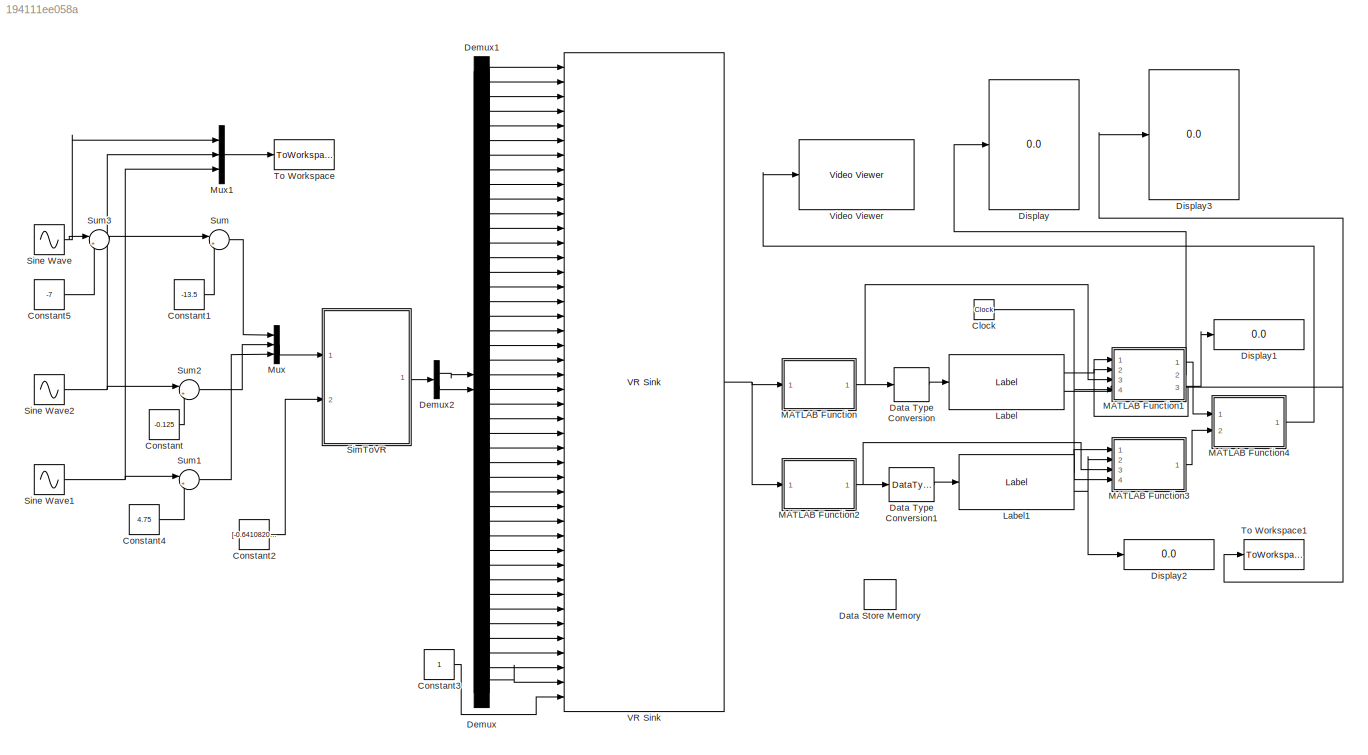
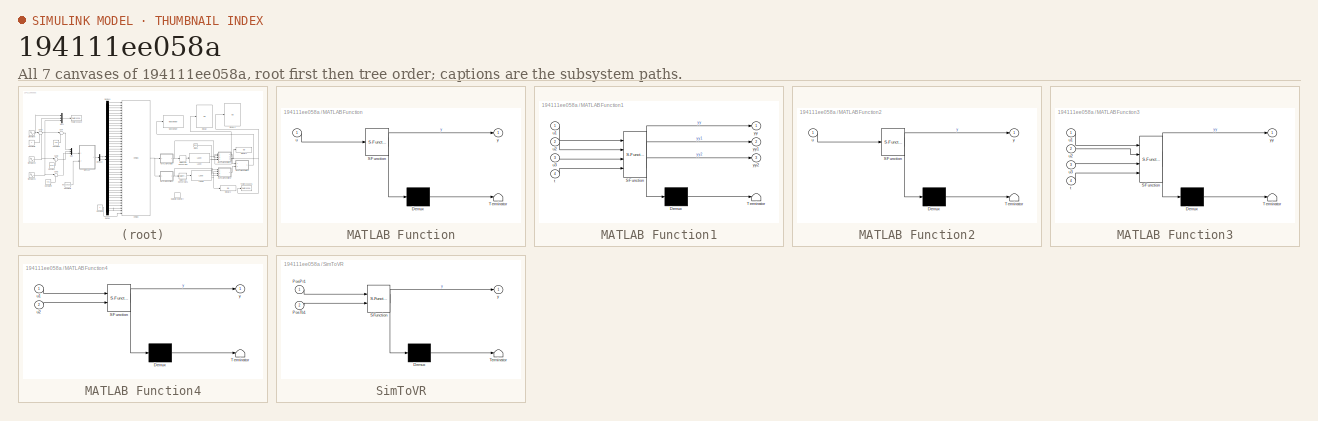
[diagram: thumbnail index - all 7 canvases of the model, root first then tree order]
MODEL slx_194111ee058a
KIND model
BLOCK [Clock] Clock
BLOCK [Constant] Constant
  Value = -0.125
BLOCK [Constant] Constant1
  Value = -13.5
BLOCK [Constant] Constant2
  Value = [-0.641082020570737	0.000198505356969816	0.319485276494183	-1.28393532402013	-0.00160281843683540	0.635386248124202	-1.93123901470987	-0.00236208899737502	0.942069136345351	-2.57908748233429	-0.00371191186814384	1.24759749734461	-3.23222347389724	-0.00458728864970563	1.54165471735559	-3.88606315497445	-0.00765856664806413	1.83412912153534	-4.54441464916205	-0.00690931267848755	2.11631662501387	-5....<+1483ch>
BLOCK [Constant] Constant3
BLOCK [Constant] Constant4
  Value = 4.75
BLOCK [Constant] Constant5
  Value = -7
BLOCK [DataStoreMemory] Data Store Memory
  DataStoreName = AA
  InitialValue = [0 0 0]
  OutDataTypeStr = double
  SignalType = real
BLOCK [DataTypeConversion] Data Type Conversion
  OutDataTypeStr = boolean
  RndMeth = Floor
  SaturateOnIntegerOverflow = off
BLOCK [DataTypeConversion] Data Type Conversion1
  OutDataTypeStr = boolean
  RndMeth = Floor
  SaturateOnIntegerOverflow = off
BLOCK [Demux] Demux
  DisplayOption = bar
  Outputs = 22
  Ports = [1, 22]
BLOCK [Demux] Demux1
  DisplayOption = bar
  Outputs = 22
  Ports = [1, 22]
BLOCK [Demux] Demux2
  DisplayOption = bar
  Outputs = [88,66]
  Ports = [1, 2]
BLOCK [Display] Display
  Decimation = 1
  Lockdown = off
  Ports = [1]
BLOCK [Display] Display1
  Decimation = 1
  Lockdown = off
  Ports = [1]
BLOCK [Display] Display2
  Decimation = 1
  Lockdown = off
  Ports = [1]
BLOCK [Display] Display3
  Decimation = 1
  Lockdown = off
  Ports = [1]
BLOCK [Reference] Label  REF=visionmorphops/Label
  Ports = [1, 2]
  SourceBlock = visionmorphops/Label
  SourceType = Label
  conn = 8
  lastLabel = maximum value of the output data type
  outType = Automatic
  output = Label matrix and number of labels
BLOCK [Reference] Label1  REF=visionmorphops/Label
  Ports = [1, 2]
  SourceBlock = visionmorphops/Label
  SourceType = Label
  conn = 8
  lastLabel = maximum value of the output data type
  outType = Automatic
  output = Label matrix and number of labels
BLOCK [SubSystem] MATLAB Function
  ErrorFcn = Stateflow.Translate.translate
  FunctionWithSeparateData = off
  MaskHideContents = off
  MinAlgLoopOccurrences = off
  Opaque = off
  PermitHierarchicalResolution = ExplicitOnly
  Ports = [1, 1]
  PropExecContextOutsideSubsystem = off
  RTWSystemCode = Auto
  RequestExecContextInheritance = off
  SFBlockType = MATLAB Function
  TreatAsAtomicUnit = on
BLOCK [Demux] MATLAB Function/ Demux 
  Outputs = 1
  Ports = [1, 1]
BLOCK [S-Function] MATLAB Function/ SFunction 
  EnableBusSupport = on
  FunctionName = sf_sfun
  PortCounts = [1 2]
  Ports = [1, 2]
  Tag = Stateflow S-Function DrogueVisualNavigation4_4Video 2
BLOCK [Terminator] MATLAB Function/ Terminator 
BLOCK [Inport] MATLAB Function/u
  IconDisplay = Port number
BLOCK [Outport] MATLAB Function/y
  IconDisplay = Port number
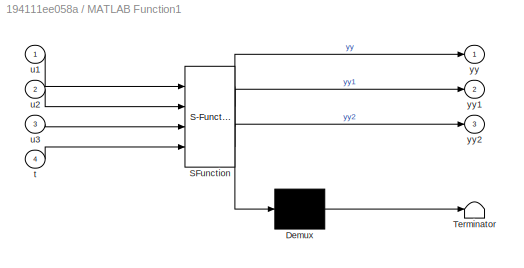
BLOCK [SubSystem] MATLAB Function1
  ErrorFcn = Stateflow.Translate.translate
  FunctionWithSeparateData = off
  MaskHideContents = off
  MinAlgLoopOccurrences = off
  Opaque = off
  PermitHierarchicalResolution = ExplicitOnly
  Ports = [4, 3]
  PropExecContextOutsideSubsystem = off
  RTWSystemCode = Auto
  RequestExecContextInheritance = off
  SFBlockType = MATLAB Function
  TreatAsAtomicUnit = on
BLOCK [Demux] MATLAB Function1/ Demux 
  Outputs = 1
  Ports = [1, 1]
BLOCK [S-Function] MATLAB Function1/ SFunction 
  EnableBusSupport = on
  FunctionName = sf_sfun
  PortCounts = [4 4]
  Ports = [4, 4]
  Tag = Stateflow S-Function DrogueVisualNavigation4_4Video 1
BLOCK [Terminator] MATLAB Function1/ Terminator 
BLOCK [Inport] MATLAB Function1/t
  IconDisplay = Port number
  Port = 4
BLOCK [Inport] MATLAB Function1/u1
  IconDisplay = Port number
BLOCK [Inport] MATLAB Function1/u2
  IconDisplay = Port number
  Port = 2
BLOCK [Inport] MATLAB Function1/u3
  IconDisplay = Port number
  Port = 3
BLOCK [Outport] MATLAB Function1/yy
  IconDisplay = Port number
BLOCK [Outport] MATLAB Function1/yy1
  IconDisplay = Port number
  Port = 2
BLOCK [Outport] MATLAB Function1/yy2
  IconDisplay = Port number
  Port = 3
BLOCK [SubSystem] MATLAB Function2
  ErrorFcn = Stateflow.Translate.translate
  FunctionWithSeparateData = off
  MaskHideContents = off
  MinAlgLoopOccurrences = off
  Opaque = off
  PermitHierarchicalResolution = ExplicitOnly
  Ports = [1, 1]
  PropExecContextOutsideSubsystem = off
  RTWSystemCode = Auto
  RequestExecContextInheritance = off
  SFBlockType = MATLAB Function
  TreatAsAtomicUnit = on
BLOCK [Demux] MATLAB Function2/ Demux 
  Outputs = 1
  Ports = [1, 1]
BLOCK [S-Function] MATLAB Function2/ SFunction 
  EnableBusSupport = on
  FunctionName = sf_sfun
  PortCounts = [1 2]
  Ports = [1, 2]
  Tag = Stateflow S-Function DrogueVisualNavigation4_4Video 4
BLOCK [Terminator] MATLAB Function2/ Terminator 
BLOCK [Inport] MATLAB Function2/u
  IconDisplay = Port number
BLOCK [Outport] MATLAB Function2/y
  IconDisplay = Port number
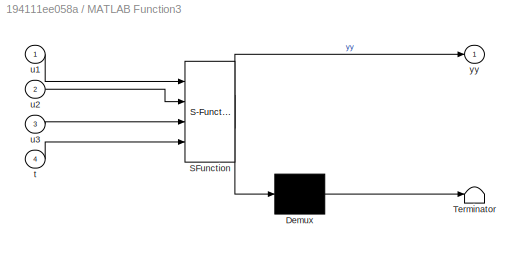
BLOCK [SubSystem] MATLAB Function3
  ErrorFcn = Stateflow.Translate.translate
  FunctionWithSeparateData = off
  MaskHideContents = off
  MinAlgLoopOccurrences = off
  Opaque = off
  PermitHierarchicalResolution = ExplicitOnly
  Ports = [4, 1]
  PropExecContextOutsideSubsystem = off
  RTWSystemCode = Auto
  RequestExecContextInheritance = off
  SFBlockType = MATLAB Function
  TreatAsAtomicUnit = on
BLOCK [Demux] MATLAB Function3/ Demux 
  Outputs = 1
  Ports = [1, 1]
BLOCK [S-Function] MATLAB Function3/ SFunction 
  EnableBusSupport = on
  FunctionName = sf_sfun
  PortCounts = [4 2]
  Ports = [4, 2]
  Tag = Stateflow S-Function DrogueVisualNavigation4_4Video 5
BLOCK [Terminator] MATLAB Function3/ Terminator 
BLOCK [Inport] MATLAB Function3/t
  IconDisplay = Port number
  Port = 4
BLOCK [Inport] MATLAB Function3/u1
  IconDisplay = Port number
BLOCK [Inport] MATLAB Function3/u2
  IconDisplay = Port number
  Port = 2
BLOCK [Inport] MATLAB Function3/u3
  IconDisplay = Port number
  Port = 3
BLOCK [Outport] MATLAB Function3/yy
  IconDisplay = Port number
BLOCK [SubSystem] MATLAB Function4
  ErrorFcn = Stateflow.Translate.translate
  FunctionWithSeparateData = off
  MaskHideContents = off
  MinAlgLoopOccurrences = off
  Opaque = off
  PermitHierarchicalResolution = ExplicitOnly
  Ports = [2, 1]
  PropExecContextOutsideSubsystem = off
  RTWSystemCode = Auto
  RequestExecContextInheritance = off
  SFBlockType = MATLAB Function
  TreatAsAtomicUnit = on
BLOCK [Demux] MATLAB Function4/ Demux 
  Outputs = 1
  Ports = [1, 1]
BLOCK [S-Function] MATLAB Function4/ SFunction 
  EnableBusSupport = on
  FunctionName = sf_sfun
  PortCounts = [2 2]
  Ports = [2, 2]
  Tag = Stateflow S-Function DrogueVisualNavigation4_4Video 6
BLOCK [Terminator] MATLAB Function4/ Terminator 
BLOCK [Inport] MATLAB Function4/u1
  IconDisplay = Port number
BLOCK [Inport] MATLAB Function4/u2
  IconDisplay = Port number
  Port = 2
BLOCK [Outport] MATLAB Function4/y
  IconDisplay = Port number
BLOCK [Mux] Mux
  DisplayOption = bar
  Inputs = 3
  Ports = [3, 1]
BLOCK [Mux] Mux1
  DisplayOption = bar
  Inputs = 3
  Ports = [3, 1]
BLOCK [SubSystem] SimToVR
  ErrorFcn = Stateflow.Translate.translate
  FunctionWithSeparateData = off
  MaskHideContents = off
  MinAlgLoopOccurrences = off
  Opaque = off
  PermitHierarchicalResolution = ExplicitOnly
  Ports = [2, 1]
  PropExecContextOutsideSubsystem = off
  RTWSystemCode = Auto
  RequestExecContextInheritance = off
  SFBlockType = MATLAB Function
  TreatAsAtomicUnit = on
BLOCK [Demux] SimToVR/ Demux 
  Outputs = 1
  Ports = [1, 1]
BLOCK [S-Function] SimToVR/ SFunction 
  EnableBusSupport = on
  FunctionName = sf_sfun
  PortCounts = [2 2]
  Ports = [2, 2]
  Tag = Stateflow S-Function DrogueVisualNavigation4_4Video 3
BLOCK [Terminator] SimToVR/ Terminator 
BLOCK [Inport] SimToVR/PosPr1
  IconDisplay = Port number
BLOCK [Inport] SimToVR/PosTb1
  IconDisplay = Port number
  Port = 2
BLOCK [Outport] SimToVR/y
  IconDisplay = Port number
BLOCK [Sin] Sine Wave
  Amplitude = 7
  Ports = [0, 1]
  SampleTime = 0
BLOCK [Sin] Sine Wave1
  Frequency = 5
  Ports = [0, 1]
  SampleTime = 0
BLOCK [Sin] Sine Wave2
  Frequency = 3
  Ports = [0, 1]
  SampleTime = 0
BLOCK [Sum] Sum
  IconShape = round
  InputSameDT = off
  Inputs = |++
  OutDataTypeStr = Inherit: Inherit via internal rule
  Ports = [2, 1]
  SaturateOnIntegerOverflow = off
BLOCK [Sum] Sum1
  IconShape = round
  InputSameDT = off
  Inputs = |++
  OutDataTypeStr = Inherit: Inherit via internal rule
  Ports = [2, 1]
  SaturateOnIntegerOverflow = off
BLOCK [Sum] Sum2
  IconShape = round
  InputSameDT = off
  Inputs = |++
  OutDataTypeStr = Inherit: Inherit via internal rule
  Ports = [2, 1]
  SaturateOnIntegerOverflow = off
BLOCK [Sum] Sum3
  IconShape = round
  InputSameDT = off
  Inputs = |++
  OutDataTypeStr = Inherit: Inherit via internal rule
  Ports = [2, 1]
  SaturateOnIntegerOverflow = off
BLOCK [ToWorkspace] To Workspace
  MaxDataPoints = inf
  Ports = [1]
  SampleTime = -1
  SaveFormat = Timeseries
  VariableName = sinCom
BLOCK [ToWorkspace] To Workspace1
  MaxDataPoints = inf
  Ports = [1]
  SampleTime = -1
  SaveFormat = Timeseries
  VariableName = simMes
BLOCK [Reference] VR Sink  REF=vrlib/VR Sink
  AllowVariableSize = off
  AutoView = off
  FieldsWritten = tube1.rotation.4.1.1.double#tube1.translation.3.1.1.double#tube2.rotation.4.1.1.double#tube2.translation.3.1.1.double#tube3.rotation.4.1.1.double#tube3.translation.3.1.1.double#tube4.rotation.4.1.1.double#tube4.translation.3.1.1.double#tube5.rotation.4.1.1.double#tube5.translation.3.1.1.double#tube6.rotation.4.1.1.double#tube6.translation.3.1.1.double#tube7.rotation.4.1.1.double#tube7.translation....<+933ch>
  FigureProperties = {'Position', 'Name', 'Viewpoint', 'CameraBound', 'CameraDirection', 'CameraPosition', 'CameraUpVector', 'ZoomFactor', 'Antialiasing', 'Headlight', 'Lighting', 'NavPanel', 'StatusBar', 'ToolBar', 'Textures', 'Transparency', 'Triad', 'Wireframe', 'NavZones', 'NavMode', 'NavSpeed', 'CaptureFileFormat', 'CaptureFileName', 'Record2DCompressMethod', 'Record2DCompressQuality', 'Record2D', 'Record2DFileNa...<+595ch>
  InstantiateOnLoad = on
  Ports = [44, 1]
  RemoteChange = off
  RemoteView = off
  SampleTime = -1
  SourceBlock = vrlib/VR Sink
  SourceType = Virtual Reality Sink
  VideoDimensions = [720 1280]
  ViewEnable = on
  WorldFileName = AirRefuelingTubeSim.WRL
BLOCK [Reference] Video Viewer  REF=visionsinks/Video Viewer
  AxisZoom = on
  DefaultConfigurationName = vipscopes.VideoViewerScopeCfg
  FigPos = [1 1008 1680 908]
  OpenAtMdlStart = on
  Ports = [1]
  SourceBlock = visionsinks/Video Viewer
  SourceType = Video Viewer
  UserDataPersistent = on
  colormapValue = jet(256)
  imagePorts = One multidimensional signal
  inputType = Obsolete7b
  maxInputVal = 255
  minInputVal = 0
  specRange = off
  trueSizedOnce = off
  useColorMap = off
NET Clock:1 -> MATLAB Function1:4, MATLAB Function3:4
LINE Constant1:1 -> Sum:2
LINE Constant2:1 -> SimToVR:2
LINE Constant3:1 -> VR Sink:44
LINE Constant4:1 -> Sum1:2
LINE Constant5:1 -> Sum3:2
LINE Constant:1 -> Sum2:2
LINE Data Type Conversion1:1 -> Label1:1
LINE Data Type Conversion:1 -> Label:1
LINE Demux1:1 -> VR Sink:1
LINE Demux1:10 -> VR Sink:19
LINE Demux1:11 -> VR Sink:21
LINE Demux1:12 -> VR Sink:23
LINE Demux1:13 -> VR Sink:25
LINE Demux1:14 -> VR Sink:27
LINE Demux1:15 -> VR Sink:29
LINE Demux1:16 -> VR Sink:31
LINE Demux1:17 -> VR Sink:33
LINE Demux1:18 -> VR Sink:35
LINE Demux1:19 -> VR Sink:37
LINE Demux1:2 -> VR Sink:3
LINE Demux1:20 -> VR Sink:39
LINE Demux1:21 -> VR Sink:41
LINE Demux1:3 -> VR Sink:5
LINE Demux1:4 -> VR Sink:7
LINE Demux1:5 -> VR Sink:9
LINE Demux1:6 -> VR Sink:11
LINE Demux1:7 -> VR Sink:13
LINE Demux1:8 -> VR Sink:15
LINE Demux1:9 -> VR Sink:17
LINE Demux2:1 -> Demux1:1
LINE Demux2:2 -> Demux:1
LINE Demux:1 -> VR Sink:2
LINE Demux:10 -> VR Sink:20
LINE Demux:11 -> VR Sink:22
LINE Demux:12 -> VR Sink:24
LINE Demux:13 -> VR Sink:26
LINE Demux:14 -> VR Sink:28
LINE Demux:15 -> VR Sink:30
LINE Demux:16 -> VR Sink:32
LINE Demux:17 -> VR Sink:34
LINE Demux:18 -> VR Sink:36
LINE Demux:19 -> VR Sink:38
LINE Demux:2 -> VR Sink:4
LINE Demux:20 -> VR Sink:40
LINE Demux:21 -> VR Sink:42
LINE Demux:22 -> VR Sink:43
LINE Demux:3 -> VR Sink:6
LINE Demux:4 -> VR Sink:8
LINE Demux:5 -> VR Sink:10
LINE Demux:6 -> VR Sink:12
LINE Demux:7 -> VR Sink:14
LINE Demux:8 -> VR Sink:16
LINE Demux:9 -> VR Sink:18
LINE Label1:1 -> MATLAB Function3:1
NET Label1:2 -> Display2:1, MATLAB Function3:2
LINE Label:1 -> MATLAB Function1:1
NET Label:2 -> Display1:1, MATLAB Function1:2
LINE MATLAB Function1:1 -> MATLAB Function4:1
LINE MATLAB Function1:2 -> Display:1
NET MATLAB Function1:3 -> Display3:1, To Workspace1:1
NET MATLAB Function2:1 -> Data Type Conversion1:1, MATLAB Function3:3
LINE MATLAB Function3:1 -> MATLAB Function4:2
LINE MATLAB Function4:1 -> Video Viewer:1
NET MATLAB Function:1 -> Data Type Conversion:1, MATLAB Function1:3
LINE Mux1:1 -> To Workspace:1
LINE Mux:1 -> SimToVR:1
LINE SimToVR:1 -> Demux2:1
NET Sine Wave1:1 -> Mux1:3, Sum1:1
NET Sine Wave2:1 -> Mux1:2, Sum2:1
NET Sine Wave:1 -> Mux1:1, Sum3:1
LINE Sum1:1 -> Mux:3
LINE Sum2:1 -> Mux:2
LINE Sum3:1 -> Sum:1
LINE Sum:1 -> Mux:1
NET VR Sink:1 -> MATLAB Function2:1, MATLAB Function:1
note: NET lines group one-source signal fan-out (src -> all destinations, sorted); 1:1 wires keep LINE
